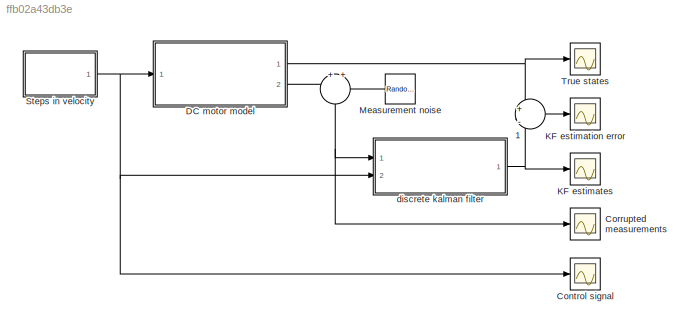
MODEL slx_ffb02a43db3e
KIND model
CONFIG AbsTol = auto
CONFIG FixedStep = auto
CONFIG MaxStep = auto
CONFIG MinStep = auto
CONFIG RelTol = 1e-3
CONFIG SampleTimeConstraint = Unconstrained
CONFIG Solver = VariableStepAuto
CONFIG SolverMode = Auto
CONFIG SolverName = VariableStepAuto
CONFIG StartTime = 0.0
CONFIG StopTime = 10.0
BLOCK [Sum]  
  IconShape = round
  InputSameDT = off
  Inputs = +|+
  OutDataTypeStr = Inherit: Inherit via internal rule
  Ports = [2, 1]
  SaturateOnIntegerOverflow = off
BLOCK [Sum]  1
  IconShape = round
  InputSameDT = off
  Inputs = +|-
  OutDataTypeStr = Inherit: Inherit via internal rule
  Ports = [2, 1]
  SaturateOnIntegerOverflow = off
BLOCK [Scope] Control signal
  Ports = [1]
  ScopeSpecificationString = Simulink.scopes.TimeScopeBlockCfg('CurrentConfiguration', extmgr.ConfigurationSet(extmgr.Configuration('Core','General UI',true),extmgr.Configuration('Core','Source UI',true),extmgr.Configuration('Sources','WiredSimulink',true,'DataLoggingVariableName','ScopeData4'),extmgr.Configuration('Visuals','Time Domain',true,'SerializedDisplays',{struct('MinYLimReal','-1.25','MaxYLimReal','1.25','YLabelReal...<+1358ch>
BLOCK [Scope] Corrupted measurements
  Ports = [1]
  ScopeSpecificationString = Simulink.scopes.TimeScopeBlockCfg('CurrentConfiguration', extmgr.ConfigurationSet(extmgr.Configuration('Core','General UI',true),extmgr.Configuration('Core','Source UI',true),extmgr.Configuration('Sources','WiredSimulink',true,'DataLoggingVariableName','ScopeData3'),extmgr.Configuration('Visuals','Time Domain',true,'SerializedDisplays',{struct('MinYLimReal','-1.26993','MaxYLimReal','1.2685','YLabe...<+1366ch>
BLOCK [ModelReference] DC motor model
  CopyOfModelName = linear_model.slx
  ModelNameDialog = linear_model.slx
  ModelReferenceVersion = 1.16
  Ports = [1, 2]
  Variant = off
BLOCK [Scope] KF estimates
  Ports = [1]
  ScopeSpecificationString = Simulink.scopes.TimeScopeBlockCfg('CurrentConfiguration', extmgr.ConfigurationSet(extmgr.Configuration('Core','General UI',true),extmgr.Configuration('Core','Source UI',true),extmgr.Configuration('Sources','WiredSimulink',true,'DataLoggingVariableName','ScopeData1'),extmgr.Configuration('Visuals','Time Domain',true,'SerializedDisplays',{struct('MinYLimReal','-1.25174','MaxYLimReal','1.25125','YLab...<+1437ch>
BLOCK [Scope] KF estimation error
  Ports = [1]
  ScopeSpecificationString = Simulink.scopes.TimeScopeBlockCfg('CurrentConfiguration', extmgr.ConfigurationSet(extmgr.Configuration('Core','General UI',true),extmgr.Configuration('Core','Source UI',true),extmgr.Configuration('Sources','WiredSimulink',true,'DataLoggingVariableName','ScopeData2'),extmgr.Configuration('Visuals','Time Domain',true,'SerializedDisplays',{struct('MinYLimReal','-0.13372','MaxYLimReal','0.1075','YLabe...<+1375ch>
BLOCK [RandomNumber] Measurement noise
  Mean = std_R.*0
  SampleTime = fset.h
  Variance = std_R.^2
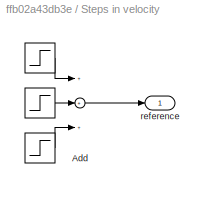
BLOCK [SubSystem] Steps in velocity
  Ports = [0, 1]
  RequestExecContextInheritance = off
  Variant = off
BLOCK [Step] Steps in velocity/  
  SampleTime = 0
  Time = 0
BLOCK [Step] Steps in velocity/   
  After = -2
  SampleTime = 0
  Time = 4
BLOCK [Step] Steps in velocity/    
  SampleTime = 0
  Time = 8
BLOCK [Sum] Steps in velocity/Add
  InputSameDT = off
  Inputs = +++
  OutDataTypeStr = Inherit: Inherit via internal rule
  Ports = [3, 1]
  SaturateOnIntegerOverflow = off
BLOCK [Outport] Steps in velocity/reference
  IconDisplay = Port number
BLOCK [Scope] True states
  Ports = [1]
  ScopeSpecificationString = Simulink.scopes.TimeScopeBlockCfg('CurrentConfiguration', extmgr.ConfigurationSet(extmgr.Configuration('Core','General UI',true),extmgr.Configuration('Core','Source UI',true),extmgr.Configuration('Sources','WiredSimulink',true,'DataLoggingLimitDataPoints',true,'DataLoggingSaveFormat','Array','DataLoggingDecimation','1','DataLoggingDecimateData',true),extmgr.Configuration('Visuals','Time Domain',tr...<+1501ch>
BLOCK [ModelReference] discrete kalman filter
  CopyOfModelName = discrete_linear_kalman.slx
  ModelNameDialog = discrete_linear_kalman.slx
  ModelReferenceVersion = 1.93
  Ports = [2, 1]
  Variant = off
LINE  1:1 -> KF estimation error:1
NET  :1 -> Corrupted measurements:1, discrete kalman filter:1
NET DC motor model:1 ->  1:1, True states:1
LINE DC motor model:2 ->  :1
LINE Measurement noise:1 ->  :2
LINE Steps in velocity/    :1 -> Steps in velocity/Add:3
LINE Steps in velocity/   :1 -> Steps in velocity/Add:2
LINE Steps in velocity/  :1 -> Steps in velocity/Add:1
LINE Steps in velocity/Add:1 -> Steps in velocity/reference:1
NET Steps in velocity:1 -> Control signal:1, DC motor model:1, discrete kalman filter:2
NET discrete kalman filter:1 ->  1:2, KF estimates:1
note: NET lines group one-source signal fan-out (src -> all destinations, sorted); 1:1 wires keep LINE
